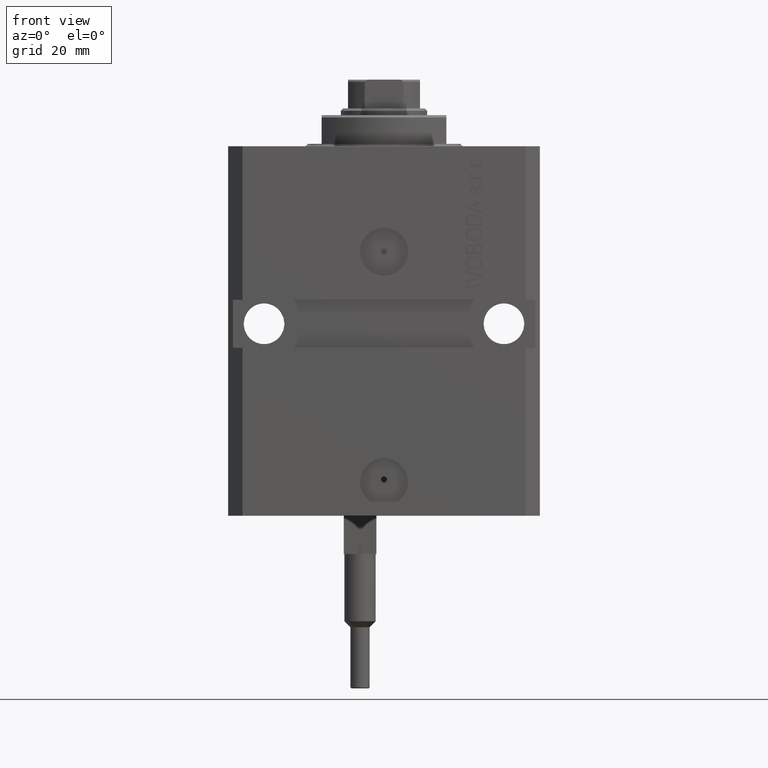
[diagram: clean part render]
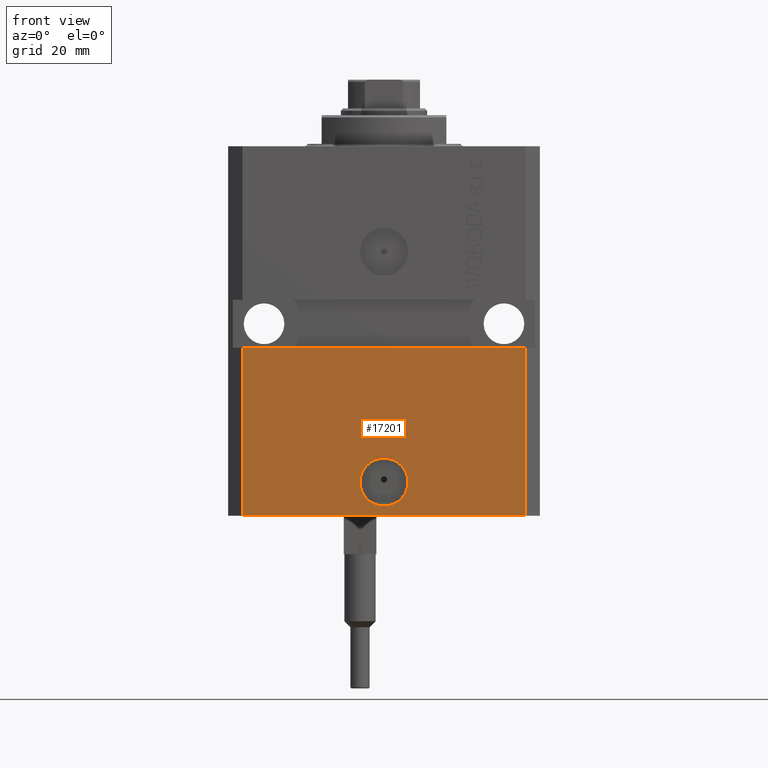
[diagram: same view with one face highlighted and labeled with its STEP entity id]
A machine part, front view. The second image highlights one B-rep face of the part: STEP entity #17201.
In plain terms, the highlighted planar face has unit normal (0, -1, 0).
Its self-contained STEP definition (entity closure, byte-faithful):
#600 = DIRECTION ( 'NONE',  ( 1.176083712526788232E-16, -1.000000000000000000, 0.000000000000000000 ) ) ;
#835 = DIRECTION ( 'NONE',  ( 1.000000000000000000, 0.000000000000000000, 0.000000000000000000 ) ) ;
#1655 = CARTESIAN_POINT ( 'NONE',  ( 5.000000000000007994, -22.49999999999949551, -69.99999999999998579 ) ) ;
#1907 = EDGE_LOOP ( 'NONE', ( #7997, #44837 ) ) ;
#3098 = EDGE_LOOP ( 'NONE', ( #21092, #45769, #17033, #31349 ) ) ;
#4543 = CARTESIAN_POINT ( 'NONE',  ( 2.646188353185214061E-15, -22.49999999999949551, -69.99999999999998579 ) ) ;
#7997 = ORIENTED_EDGE ( 'NONE', *, *, #13774, .F. ) ;
#8204 = EDGE_CURVE ( 'NONE', #24989, #12290, #24261, .T. ) ;
#8890 = VECTOR ( 'NONE', #47054, 1000.000000000000000 ) ;
#8925 = DIRECTION ( 'NONE',  ( 1.000000000000000000, 0.000000000000000000, 0.000000000000000000 ) ) ;
#10424 = PLANE ( 'NONE',  #47024 ) ;
#11023 = VERTEX_POINT ( 'NONE', #20815 ) ;
#12290 = VERTEX_POINT ( 'NONE', #45261 ) ;
#13396 = VECTOR ( 'NONE', #32797, 1000.000000000000000 ) ;
#13770 = EDGE_CURVE ( 'NONE', #11023, #24314, #19286, .T. ) ;
#13774 = EDGE_CURVE ( 'NONE', #24314, #11023, #40409, .T. ) ;
#14663 = VERTEX_POINT ( 'NONE', #15753 ) ;
#15753 = CARTESIAN_POINT ( 'NONE',  ( -29.49999999999650413, -22.49999999999949907, -77.00000000000000000 ) ) ;
#17033 = ORIENTED_EDGE ( 'NONE', *, *, #32644, .T. ) ;
#17201 = ADVANCED_FACE ( 'NONE', ( #29536, #44492 ), #10424, .T. ) ;
#18201 = EDGE_CURVE ( 'NONE', #26924, #12290, #25199, .T. ) ;
#18736 = CARTESIAN_POINT ( 'NONE',  ( -29.49999999999650413, -22.49999999999949907, -77.00000000000000000 ) ) ;
#18966 = CARTESIAN_POINT ( 'NONE',  ( 29.49999999999650413, -22.49999999999949196, -77.00000000000000000 ) ) ;
#19256 = VECTOR ( 'NONE', #25186, 1000.000000000000000 ) ;
#19286 = CIRCLE ( 'NONE', #26343, 5.000000000000005329 ) ;
#20585 = CARTESIAN_POINT ( 'NONE',  ( 29.49999999999650413, -22.49999999999949196, -77.00000000000000000 ) ) ;
#20815 = CARTESIAN_POINT ( 'NONE',  ( -5.000000000000002665, -22.49999999999949551, -69.99999999999998579 ) ) ;
#21092 = ORIENTED_EDGE ( 'NONE', *, *, #18201, .F. ) ;
#24261 = LINE ( 'NONE', #20585, #8890 ) ;
#24314 = VERTEX_POINT ( 'NONE', #1655 ) ;
#24989 = VERTEX_POINT ( 'NONE', #18966 ) ;
#25186 = DIRECTION ( 'NONE',  ( 0.000000000000000000, 0.000000000000000000, 1.000000000000000000 ) ) ;
#25199 = LINE ( 'NONE', #47032, #13396 ) ;
#26343 = AXIS2_PLACEMENT_3D ( 'NONE', #34421, #34186, #835 ) ;
#26924 = VERTEX_POINT ( 'NONE', #36348 ) ;
#28810 = CARTESIAN_POINT ( 'NONE',  ( -29.49999999999650413, -22.49999999999949907, -77.00000000000000000 ) ) ;
#29105 = CARTESIAN_POINT ( 'NONE',  ( -29.49999999999650413, -22.49999999999949907, -77.00000000000000000 ) ) ;
#29124 = EDGE_CURVE ( 'NONE', #14663, #26924, #44058, .T. ) ;
#29536 = FACE_BOUND ( 'NONE', #1907, .T. ) ;
#31349 = ORIENTED_EDGE ( 'NONE', *, *, #8204, .T. ) ;
#32644 = EDGE_CURVE ( 'NONE', #14663, #24989, #37856, .T. ) ;
#32726 = DIRECTION ( 'NONE',  ( 1.000000000000000000, 1.176083712526788232E-16, 0.000000000000000000 ) ) ;
#32797 = DIRECTION ( 'NONE',  ( 1.000000000000000000, 1.067522139062765303E-16, 1.067522139062765303E-16 ) ) ;
#34186 = DIRECTION ( 'NONE',  ( 1.176083712526788232E-16, -1.000000000000000000, 0.000000000000000000 ) ) ;
#34421 = CARTESIAN_POINT ( 'NONE',  ( 2.646188353185214061E-15, -22.49999999999949551, -69.99999999999998579 ) ) ;
#35634 = VECTOR ( 'NONE', #43815, 1000.000000000000000 ) ;
#36348 = CARTESIAN_POINT ( 'NONE',  ( -29.49999999999650413, -22.49999999999949907, -41.99999999999999289 ) ) ;
#37376 = DIRECTION ( 'NONE',  ( 1.176083712526788232E-16, -1.000000000000000000, 0.000000000000000000 ) ) ;
#37856 = LINE ( 'NONE', #18736, #35634 ) ;
#40409 = CIRCLE ( 'NONE', #47477, 5.000000000000005329 ) ;
#43815 = DIRECTION ( 'NONE',  ( 1.000000000000000000, 1.176083712526788232E-16, 0.000000000000000000 ) ) ;
#44058 = LINE ( 'NONE', #29105, #19256 ) ;
#44492 = FACE_OUTER_BOUND ( 'NONE', #3098, .T. ) ;
#44837 = ORIENTED_EDGE ( 'NONE', *, *, #13770, .F. ) ;
#45261 = CARTESIAN_POINT ( 'NONE',  ( 29.49999999999650058, -22.49999999999949196, -41.99999999999998579 ) ) ;
#45769 = ORIENTED_EDGE ( 'NONE', *, *, #29124, .F. ) ;
#47024 = AXIS2_PLACEMENT_3D ( 'NONE', #28810, #37376, #32726 ) ;
#47032 = CARTESIAN_POINT ( 'NONE',  ( -32.49999999999650413, -22.49999999999949907, -41.99999999999999289 ) ) ;
#47054 = DIRECTION ( 'NONE',  ( 0.000000000000000000, 0.000000000000000000, 1.000000000000000000 ) ) ;
#47477 = AXIS2_PLACEMENT_3D ( 'NONE', #4543, #600, #8925 ) ;